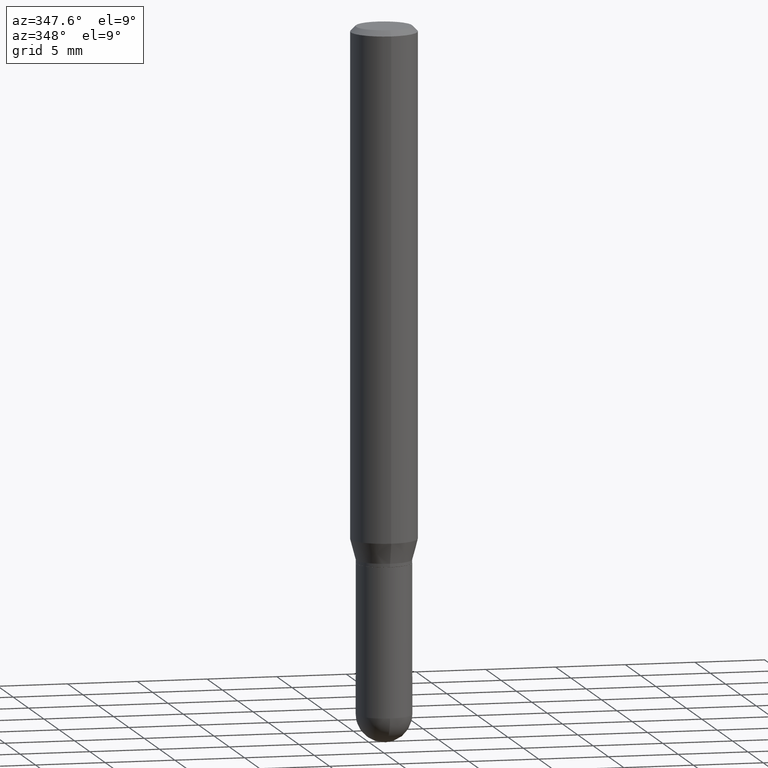
[diagram: clean part render]
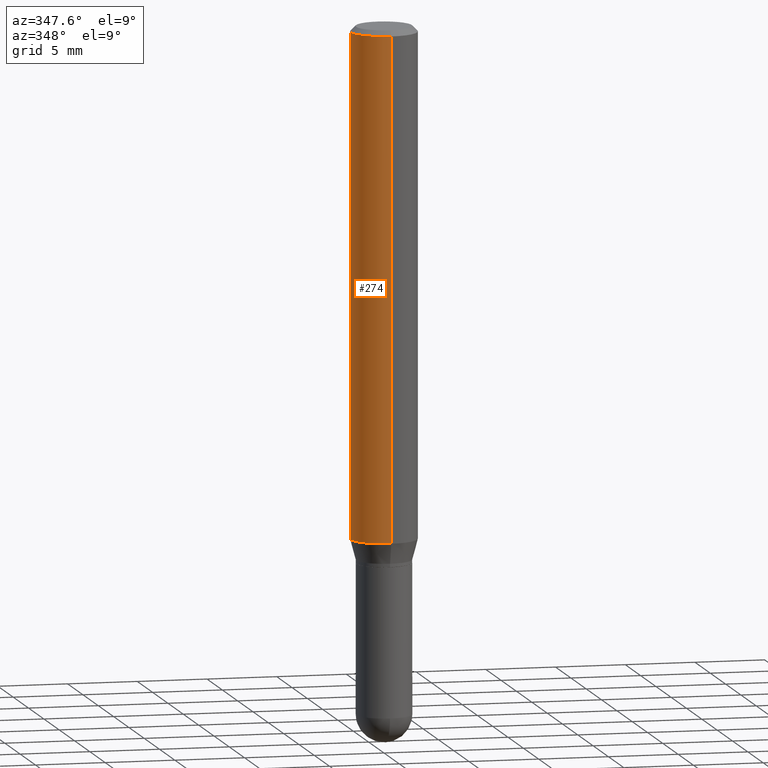
[diagram: same view with one face highlighted and labeled with its STEP entity id]
A machine part, auxiliary view. The second image highlights one B-rep face of the part: STEP entity #274.
In plain terms, the highlighted cylindrical surface (edge-blend (fillet) strip) has radius 2.3813 mm, axis along (-0, 0, 1).
Its self-contained STEP definition (entity closure, byte-faithful):
#8 = DIRECTION ( 'NONE',  ( -6.982962677686265922E-15, -1.000000000000000000, 3.483106191921935160E-15 ) ) ;
#13 = VECTOR ( 'NONE', #404, 39.37007874015748143 ) ;
#42 = ORIENTED_EDGE ( 'NONE', *, *, #364, .T. ) ;
#69 = CARTESIAN_POINT ( 'NONE',  ( -6.546527510330523012E-16, -0.09375000000000500988, -1.431593404861545737 ) ) ;
#72 = DIRECTION ( 'NONE',  ( -2.445771070544258513E-29, 3.491048479077063976E-15, 1.000000000000000000 ) ) ;
#76 = CARTESIAN_POINT ( 'NONE',  ( 3.501349734392323234E-29, -4.997761978698656219E-15, -1.431593404861545960 ) ) ;
#77 = ORIENTED_EDGE ( 'NONE', *, *, #291, .F. ) ;
#82 = VERTEX_POINT ( 'NONE', #241 ) ;
#89 = EDGE_CURVE ( 'NONE', #195, #477, #290, .T. ) ;
#92 = VERTEX_POINT ( 'NONE', #333 ) ;
#121 = CYLINDRICAL_SURFACE ( 'NONE', #463, 0.09375000000000001388 ) ;
#124 = AXIS2_PLACEMENT_3D ( 'NONE', #238, #151, #8 ) ;
#150 = FACE_OUTER_BOUND ( 'NONE', #509, .T. ) ;
#151 = DIRECTION ( 'NONE',  ( -2.445771070544258513E-29, 3.491048479077063976E-15, 1.000000000000000000 ) ) ;
#153 = DIRECTION ( 'NONE',  ( -6.982962677686265922E-15, -1.000000000000000000, 2.913971193241880372E-15 ) ) ;
#172 = EDGE_CURVE ( 'NONE', #92, #82, #300, .T. ) ;
#195 = VERTEX_POINT ( 'NONE', #69 ) ;
#238 = CARTESIAN_POINT ( 'NONE',  ( 3.668656605816431051E-31, -5.236572718615656977E-17, -0.01500000000000017465 ) ) ;
#241 = CARTESIAN_POINT ( 'NONE',  ( 6.661338147751291272E-16, 0.09374999999999995837, -0.01500000000000050078 ) ) ;
#246 = ORIENTED_EDGE ( 'NONE', *, *, #89, .T. ) ;
#274 = ADVANCED_FACE ( 'NONE', ( #150 ), #121, .T. ) ;
#275 = ORIENTED_EDGE ( 'NONE', *, *, #172, .F. ) ;
#285 = CIRCLE ( 'NONE', #372, 0.09375000000000001388 ) ;
#290 = LINE ( 'NONE', #363, #13 ) ;
#291 = EDGE_CURVE ( 'NONE', #82, #477, #388, .T. ) ;
#300 = LINE ( 'NONE', #424, #397 ) ;
#305 = CARTESIAN_POINT ( 'NONE',  ( 0.000000000000000000, 0.000000000000000000, 0.000000000000000000 ) ) ;
#333 = CARTESIAN_POINT ( 'NONE',  ( 6.661338147751288313E-16, 0.09374999999999500400, -1.431593404861546182 ) ) ;
#363 = CARTESIAN_POINT ( 'NONE',  ( -6.546527510330875041E-16, -0.09375000000000001388, 3.272857949134747847E-16 ) ) ;
#364 = EDGE_CURVE ( 'NONE', #92, #195, #285, .T. ) ;
#372 = AXIS2_PLACEMENT_3D ( 'NONE', #76, #72, #153 ) ;
#386 = DIRECTION ( 'NONE',  ( -2.445771070544258232E-29, 3.491048479077063581E-15, 1.000000000000000000 ) ) ;
#388 = CIRCLE ( 'NONE', #124, 0.09375000000000001388 ) ;
#397 = VECTOR ( 'NONE', #386, 39.37007874015748143 ) ;
#404 = DIRECTION ( 'NONE',  ( -2.445771070544258232E-29, 3.491048479077063581E-15, 1.000000000000000000 ) ) ;
#424 = CARTESIAN_POINT ( 'NONE',  ( 6.661338147750938256E-16, 0.09375000000000001388, -3.272857949134747847E-16 ) ) ;
#428 = DIRECTION ( 'NONE',  ( -6.982962677686265922E-15, -1.000000000000000000, 3.491048479077063976E-15 ) ) ;
#463 = AXIS2_PLACEMENT_3D ( 'NONE', #305, #468, #428 ) ;
#468 = DIRECTION ( 'NONE',  ( -2.445771070544258513E-29, 3.491048479077063976E-15, 1.000000000000000000 ) ) ;
#477 = VERTEX_POINT ( 'NONE', #493 ) ;
#493 = CARTESIAN_POINT ( 'NONE',  ( -6.546527510330871097E-16, -0.09375000000000005551, -0.01499999999999984852 ) ) ;
#509 = EDGE_LOOP ( 'NONE', ( #275, #42, #246, #77 ) ) ;